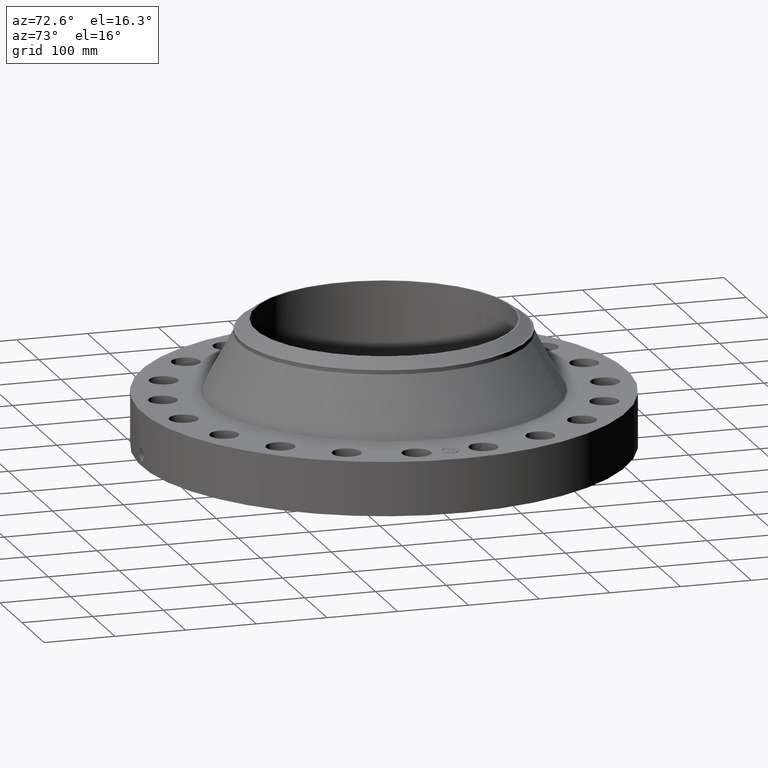
[diagram: clean part render]
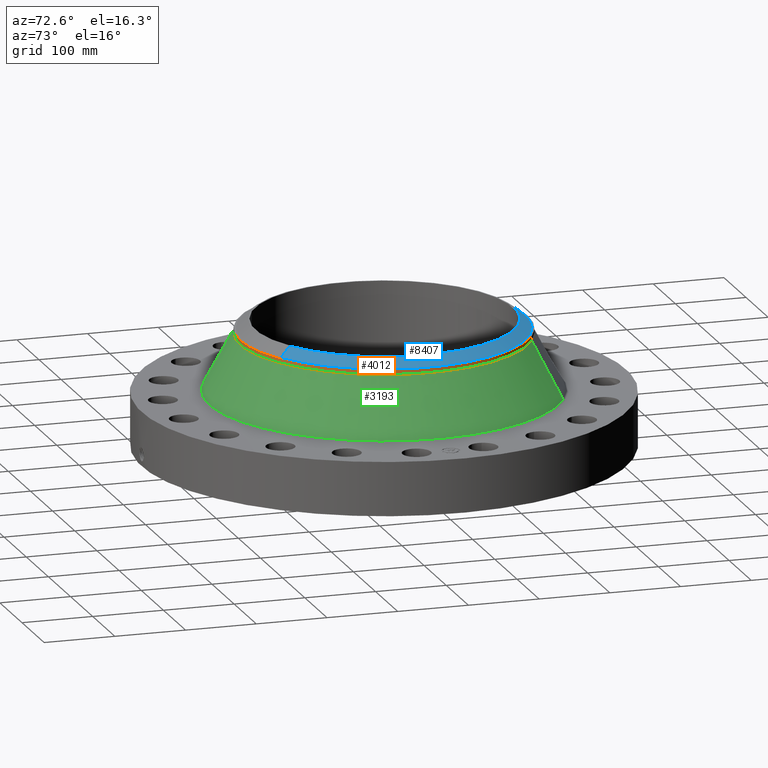
[diagram: same view with three faces highlighted in distinct colors, each labeled with its STEP entity id]
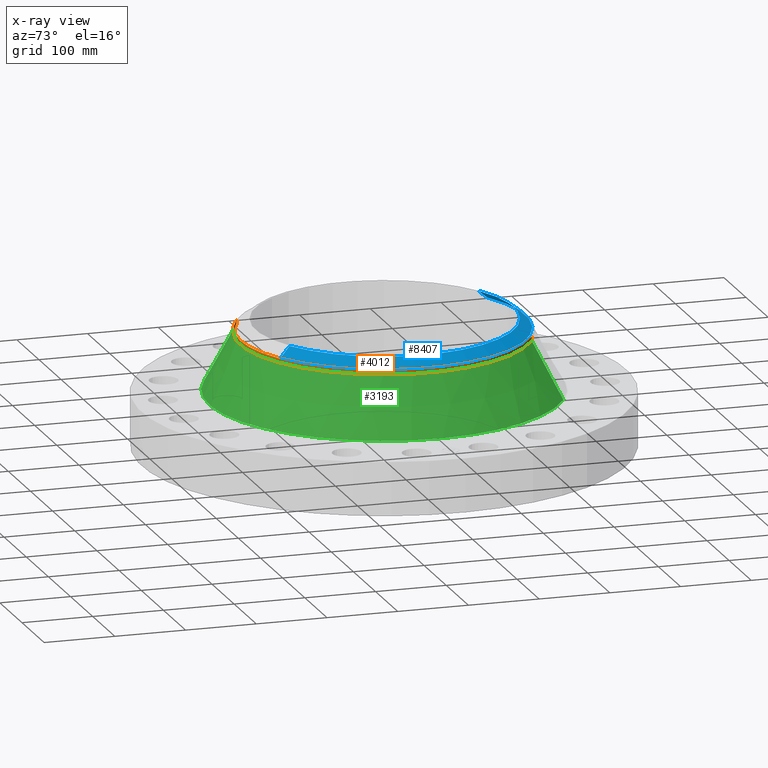
[diagram: x-ray of the same camera — body ghosted, the three highlighted faces saturated]
A machine part, auxiliary view with three faces highlighted in distinct colors.
The next image is the same camera in x-ray (body ghosted, the three faces saturated) — at least one of them is partly hidden behind the body in this view.
Their STEP definitions:

[orange] entity #4012 — the highlighted cylindrical surface (partial cylindrical patch) has radius 203.2 mm, axis along (0, 0, -1).
#3177=AXIS2_PLACEMENT_3D('Circle Axis2P3D',#3175,#3176,$) ;
#3977=AXIS2_PLACEMENT_3D('Cylinder Axis2P3D',#3974,#3975,#3976) ;
#3995=AXIS2_PLACEMENT_3D('Circle Axis2P3D',#3993,#3994,$) ;
#4002=AXIS2_PLACEMENT_3D('Circle Axis2P3D',#4000,#4001,$) ;
#3172=CARTESIAN_POINT('Vertex',(3.83540430885,7.02066049515,6.48329238413)) ;
#3175=CARTESIAN_POINT('Axis2P3D Location',(0.,0.,6.48329238413)) ;
#3179=CARTESIAN_POINT('Vertex',(-3.83540430885,-7.02066049515,6.48329238413)) ;
#3974=CARTESIAN_POINT('Axis2P3D Location',(0.,0.,3.62500000001)) ;
#3979=CARTESIAN_POINT('Line Origine',(-3.83540430885,-7.02066049515,6.60140262035)) ;
#3983=CARTESIAN_POINT('Vertex',(-3.83540430885,-7.02066049515,6.71951285657)) ;
#3986=CARTESIAN_POINT('Line Origine',(3.83540430885,7.02066049515,6.60140262035)) ;
#3990=CARTESIAN_POINT('Vertex',(3.83540430885,7.02066049515,6.71951285657)) ;
#3993=CARTESIAN_POINT('Axis2P3D Location',(0.,0.,6.71951285657)) ;
#3997=CARTESIAN_POINT('Vertex',(3.83540430885,-7.02066049515,6.71951285657)) ;
#4000=CARTESIAN_POINT('Axis2P3D Location',(0.,0.,6.71951285657)) ;
#3176=DIRECTION('Axis2P3D Direction',(0.,0.,-0.0393700787402)) ;
#3975=DIRECTION('Axis2P3D Direction',(0.,0.,-0.0393700787402)) ;
#3976=DIRECTION('Axis2P3D XDirection',(-0.0188750212049,-0.0345504945626,0.)) ;
#3980=DIRECTION('Vector Direction',(0.,0.,-0.0393700787402)) ;
#3987=DIRECTION('Vector Direction',(0.,0.,-0.0393700787402)) ;
#3994=DIRECTION('Axis2P3D Direction',(0.,0.,-0.0393700787402)) ;
#4001=DIRECTION('Axis2P3D Direction',(0.,0.,-0.0393700787402)) ;
#3981=VECTOR('Line Direction',#3980,0.0393700787402) ;
#3988=VECTOR('Line Direction',#3987,0.0393700787402) ;
#4006=ORIENTED_EDGE('',*,*,#3985,.F.) ;
#4007=ORIENTED_EDGE('',*,*,#3181,.F.) ;
#4008=ORIENTED_EDGE('',*,*,#3992,.T.) ;
#4009=ORIENTED_EDGE('',*,*,#3999,.F.) ;
#4010=ORIENTED_EDGE('',*,*,#4004,.T.) ;
#4012=ADVANCED_FACE('PartBody',(#4011),#3978,.T.) ;
#3178=CIRCLE('generated circle',#3177,8.00000000003) ;
#3996=CIRCLE('generated circle',#3995,8.00000000003) ;
#4003=CIRCLE('generated circle',#4002,8.00000000003) ;
#3978=CYLINDRICAL_SURFACE('generated cylinder',#3977,8.00000000003) ;
#3181=EDGE_CURVE('',#3173,#3180,#3178,.T.) ;
#3985=EDGE_CURVE('',#3180,#3984,#3982,.F.) ;
#3992=EDGE_CURVE('',#3173,#3991,#3989,.F.) ;
#3999=EDGE_CURVE('',#3998,#3991,#3996,.F.) ;
#4004=EDGE_CURVE('',#3998,#3984,#4003,.T.) ;
#4005=EDGE_LOOP('',(#4006,#4007,#4008,#4009,#4010)) ;
#4011=FACE_OUTER_BOUND('',#4005,.T.) ;
#3982=LINE('Line',#3979,#3981) ;
#3989=LINE('Line',#3986,#3988) ;
#3173=VERTEX_POINT('',#3172) ;
#3180=VERTEX_POINT('',#3179) ;
#3984=VERTEX_POINT('',#3983) ;
#3991=VERTEX_POINT('',#3990) ;
#3998=VERTEX_POINT('',#3997) ;

[blue] entity #8407 — the highlighted conical surface has half-angle 52.5 deg.
#4808=AXIS2_PLACEMENT_3D('Circle Axis2P3D',#4806,#4807,$) ;
#8368=AXIS2_PLACEMENT_3D('Cone Axis2P3D',#8365,#8366,#8367) ;
#8398=AXIS2_PLACEMENT_3D('Circle Axis2P3D',#8396,#8397,$) ;
#4806=CARTESIAN_POINT('Axis2P3D Location',(0.,0.,7.25000000003)) ;
#4810=CARTESIAN_POINT('Vertex',(3.46851919668,-6.34908180204,7.25000000003)) ;
#4812=CARTESIAN_POINT('Vertex',(-3.46851919668,6.34908180204,7.25000000003)) ;
#8365=CARTESIAN_POINT('Axis2P3D Location',(0.,0.,7.25000000003)) ;
#8370=CARTESIAN_POINT('Line Origine',(-3.62346049923,6.63269995394,7.00201437259)) ;
#8374=CARTESIAN_POINT('Vertex',(-3.77840180178,6.91631810585,6.75402874516)) ;
#8381=CARTESIAN_POINT('Vertex',(3.77840180178,-6.91631810585,6.75402874516)) ;
#8384=CARTESIAN_POINT('Line Origine',(3.62346049923,-6.63269995394,7.00201437259)) ;
#8396=CARTESIAN_POINT('Axis2P3D Location',(0.,0.,6.75402874516)) ;
#4807=DIRECTION('Axis2P3D Direction',(0.,0.,-0.0393700787402)) ;
#8366=DIRECTION('Axis2P3D Direction',(-0.,-0.,-0.0393700787402)) ;
#8367=DIRECTION('Axis2P3D XDirection',(-0.0188750212049,0.0345504945626,0.)) ;
#8371=DIRECTION('Vector Direction',(-0.014974561121,0.02741075027,-0.023966985394)) ;
#8385=DIRECTION('Vector Direction',(0.014974561121,-0.02741075027,-0.023966985394)) ;
#8397=DIRECTION('Axis2P3D Direction',(0.,0.,-0.0393700787402)) ;
#8372=VECTOR('Line Direction',#8371,0.0393700787402) ;
#8386=VECTOR('Line Direction',#8385,0.0393700787402) ;
#8402=ORIENTED_EDGE('',*,*,#4814,.F.) ;
#8403=ORIENTED_EDGE('',*,*,#8388,.T.) ;
#8404=ORIENTED_EDGE('',*,*,#8400,.T.) ;
#8405=ORIENTED_EDGE('',*,*,#8376,.F.) ;
#8407=ADVANCED_FACE('PartBody',(#8406),#8369,.T.) ;
#4809=CIRCLE('generated circle',#4808,7.23474015751) ;
#8399=CIRCLE('generated circle',#8398,7.88110248106) ;
#8369=CONICAL_SURFACE('Cone',#8368,7.23474015751,0.916297857297) ;
#4814=EDGE_CURVE('',#4811,#4813,#4809,.F.) ;
#8376=EDGE_CURVE('',#4813,#8375,#8373,.T.) ;
#8388=EDGE_CURVE('',#4811,#8382,#8387,.T.) ;
#8400=EDGE_CURVE('',#8382,#8375,#8399,.F.) ;
#8401=EDGE_LOOP('',(#8402,#8403,#8404,#8405)) ;
#8406=FACE_OUTER_BOUND('',#8401,.T.) ;
#8373=LINE('Line',#8370,#8372) ;
#8387=LINE('Line',#8384,#8386) ;
#4811=VERTEX_POINT('',#4810) ;
#4813=VERTEX_POINT('',#4812) ;
#8375=VERTEX_POINT('',#8374) ;
#8382=VERTEX_POINT('',#8381) ;

[green] entity #3193 — the highlighted conical surface has half-angle 28.424 deg.
#2538=AXIS2_PLACEMENT_3D('Circle Axis2P3D',#2536,#2537,$) ;
#3166=AXIS2_PLACEMENT_3D('Cone Axis2P3D',#3163,#3164,#3165) ;
#3177=AXIS2_PLACEMENT_3D('Circle Axis2P3D',#3175,#3176,$) ;
#2533=CARTESIAN_POINT('Vertex',(4.65808237676,8.52656259739,3.31288051485)) ;
#2536=CARTESIAN_POINT('Axis2P3D Location',(0.,0.,3.31288051485)) ;
#2540=CARTESIAN_POINT('Vertex',(-4.65808237676,-8.52656259739,3.31288051485)) ;
#3163=CARTESIAN_POINT('Axis2P3D Location',(0.,0.,6.48329238413)) ;
#3168=CARTESIAN_POINT('Line Origine',(4.24674334281,7.77361154627,4.89808644949)) ;
#3172=CARTESIAN_POINT('Vertex',(3.83540430885,7.02066049515,6.48329238413)) ;
#3175=CARTESIAN_POINT('Axis2P3D Location',(0.,0.,6.48329238413)) ;
#3179=CARTESIAN_POINT('Vertex',(-3.83540430885,-7.02066049515,6.48329238413)) ;
#3182=CARTESIAN_POINT('Line Origine',(-4.24674334281,-7.77361154627,4.89808644949)) ;
#2537=DIRECTION('Axis2P3D Direction',(0.,0.,-0.0393700787402)) ;
#3164=DIRECTION('Axis2P3D Direction',(0.,0.,-0.0393700787402)) ;
#3165=DIRECTION('Axis2P3D XDirection',(-0.0188750212049,-0.0345504945626,0.)) ;
#3169=DIRECTION('Vector Direction',(0.00898442911468,0.016445887181,-0.0346239213308)) ;
#3176=DIRECTION('Axis2P3D Direction',(0.,0.,-0.0393700787402)) ;
#3183=DIRECTION('Vector Direction',(-0.00898442911468,-0.016445887181,-0.0346239213308)) ;
#3170=VECTOR('Line Direction',#3169,0.0393700787402) ;
#3184=VECTOR('Line Direction',#3183,0.0393700787402) ;
#3188=ORIENTED_EDGE('',*,*,#2542,.F.) ;
#3189=ORIENTED_EDGE('',*,*,#3174,.T.) ;
#3190=ORIENTED_EDGE('',*,*,#3181,.T.) ;
#3191=ORIENTED_EDGE('',*,*,#3186,.F.) ;
#3193=ADVANCED_FACE('PartBody',(#3192),#3167,.T.) ;
#2539=CIRCLE('generated circle',#2538,9.71596630068) ;
#3178=CIRCLE('generated circle',#3177,8.00000000003) ;
#3167=CONICAL_SURFACE('Cone',#3166,8.00000000003,0.496095884312) ;
#2542=EDGE_CURVE('',#2534,#2541,#2539,.T.) ;
#3174=EDGE_CURVE('',#2534,#3173,#3171,.F.) ;
#3181=EDGE_CURVE('',#3173,#3180,#3178,.T.) ;
#3186=EDGE_CURVE('',#2541,#3180,#3185,.F.) ;
#3187=EDGE_LOOP('',(#3188,#3189,#3190,#3191)) ;
#3192=FACE_OUTER_BOUND('',#3187,.T.) ;
#3171=LINE('Line',#3168,#3170) ;
#3185=LINE('Line',#3182,#3184) ;
#2534=VERTEX_POINT('',#2533) ;
#2541=VERTEX_POINT('',#2540) ;
#3173=VERTEX_POINT('',#3172) ;
#3180=VERTEX_POINT('',#3179) ;